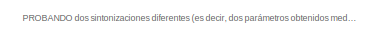
[diagram: root canvas - part 1/6, top left region]
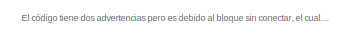
[diagram: root canvas - part 2/6, top right region]
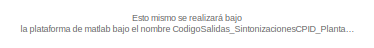
[diagram: root canvas - part 3/6, top left region]
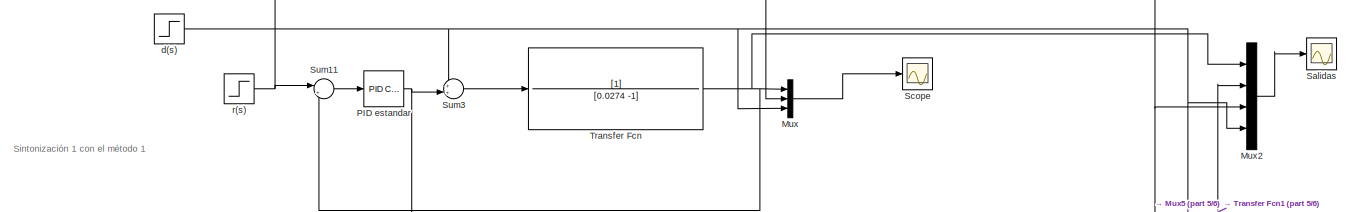
[diagram: root canvas - part 4/6, central region]
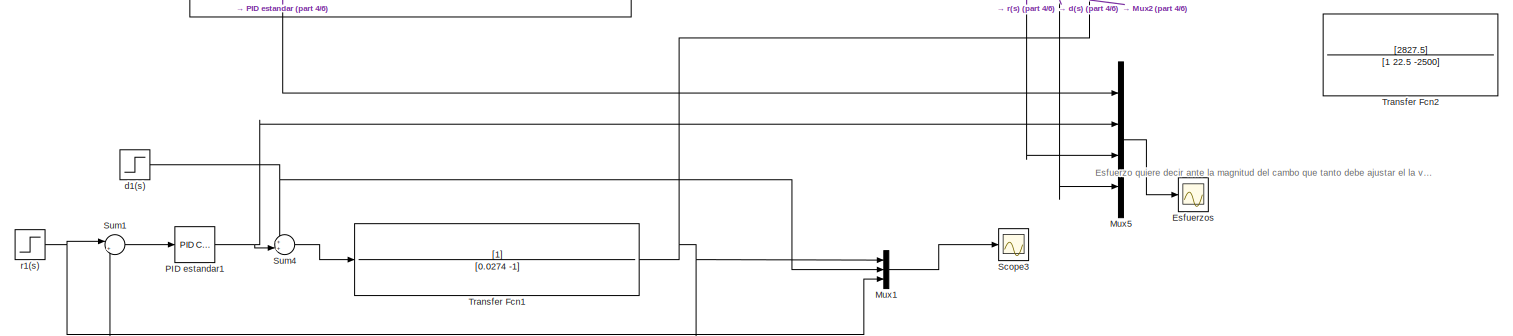
[diagram: root canvas - part 5/6, full width, bottom band]
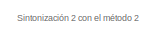
[diagram: root canvas - part 6/6, middle left region]
MODEL slx_3dabc0c36dd0
KIND model
CONFIG AbsTol = auto
CONFIG EnableMultiTasking = off
CONFIG FixedStep = auto
CONFIG MaxStep = auto
CONFIG MinStep = auto
CONFIG RelTol = 1e-3
CONFIG SampleTimeConstraint = Unconstrained
CONFIG Solver = VariableStepAuto
CONFIG SolverName = VariableStepAuto
CONFIG StartTime = 0.0
CONFIG StopTime = 100
BLOCK [Scope] Esfuerzos
  Floating = off
  NumInputPorts = 1
  Ports = [1]
  ScopeSpecificationString = Simulink.scopes.TimeScopeBlockCfg('CurrentConfiguration', extmgr.ConfigurationSet(extmgr.Configuration('Core','General UI',true,'FigureColor',[1 1 1]),extmgr.Configuration('Core','Source UI',true),extmgr.Configuration('Sources','WiredSimulink',true,'DataLoggingVariableName','ScopeData5'),extmgr.Configuration('Visuals','Time Domain',true,'SerializedDisplays',{struct('MinYLimReal','-5.75527','MaxYLi...<+1985ch>
BLOCK [Mux] Mux
  DisplayOption = bar
  Inputs = 3
  Ports = [3, 1]
BLOCK [Mux] Mux1
  DisplayOption = bar
  Inputs = 3
  Ports = [3, 1]
BLOCK [Mux] Mux2
  DisplayOption = bar
  Ports = [4, 1]
BLOCK [Mux] Mux5
  DisplayOption = bar
  Ports = [4, 1]
BLOCK [Reference] PID estandar  REF=simulink/Continuous/PID Controller
  Ports = [1, 1]
  SourceBlock = simulink/Continuous/PID Controller
  SourceProductBaseCode = SL
  SourceProductName = Simulink
  SourceType = PID 1dof
BLOCK [Reference] PID estandar1  REF=simulink/Continuous/PID Controller
  Ports = [1, 1]
  SourceBlock = simulink/Continuous/PID Controller
  SourceProductBaseCode = SL
  SourceProductName = Simulink
  SourceType = PID 1dof
BLOCK [Scope] Salidas
  Floating = off
  NumInputPorts = 1
  Ports = [1]
  ScopeSpecificationString = Simulink.scopes.TimeScopeBlockCfg('CurrentConfiguration', extmgr.ConfigurationSet(extmgr.Configuration('Core','General UI',true,'FigureColor',[1 1 1]),extmgr.Configuration('Core','Source UI',true),extmgr.Configuration('Sources','WiredSimulink',true,'DataLoggingVariableName','ScopeData4'),extmgr.Configuration('Visuals','Time Domain',true,'SerializedDisplays',{struct('MinYLimReal','-0.30677','MaxYLi...<+1851ch>
BLOCK [Scope] Scope
  Floating = off
  NumInputPorts = 1
  Ports = [1]
  ScopeSpecificationString = Simulink.scopes.TimeScopeBlockCfg('CurrentConfiguration', extmgr.ConfigurationSet(extmgr.Configuration('Core','General UI',true,'FigureColor',[1 1 1]),extmgr.Configuration('Core','Source UI',true),extmgr.Configuration('Sources','WiredSimulink',true,'DataLoggingVariableName','ScopeData2'),extmgr.Configuration('Visuals','Time Domain',true,'SerializedDisplays',{struct('MinYLimReal','-12.87704','MaxYL...<+1800ch>
BLOCK [Scope] Scope3
  Floating = off
  NumInputPorts = 1
  Ports = [1]
  ScopeSpecificationString = Simulink.scopes.TimeScopeBlockCfg('CurrentConfiguration', extmgr.ConfigurationSet(extmgr.Configuration('Core','General UI',true,'FigureColor',[1 1 1]),extmgr.Configuration('Core','Source UI',true),extmgr.Configuration('Sources','WiredSimulink',true,'DataLoggingVariableName','ScopeData3'),extmgr.Configuration('Visuals','Time Domain',true,'SerializedDisplays',{struct('MinYLimReal','-0.30093','MaxYLi...<+1733ch>
BLOCK [Sum] Sum1
  IconShape = round
  InputSameDT = off
  Inputs = |+-
  OutDataTypeStr = Inherit: Inherit via internal rule
  Ports = [2, 1]
  SaturateOnIntegerOverflow = off
BLOCK [Sum] Sum11
  IconShape = round
  InputSameDT = off
  Inputs = |+-
  OutDataTypeStr = Inherit: Inherit via internal rule
  Ports = [2, 1]
  SaturateOnIntegerOverflow = off
BLOCK [Sum] Sum3
  IconShape = round
  InputSameDT = off
  Inputs = ++|
  OutDataTypeStr = Inherit: Inherit via internal rule
  Ports = [2, 1]
  SaturateOnIntegerOverflow = off
BLOCK [Sum] Sum4
  IconShape = round
  InputSameDT = off
  Inputs = ++|
  OutDataTypeStr = Inherit: Inherit via internal rule
  Ports = [2, 1]
  SaturateOnIntegerOverflow = off
BLOCK [TransferFcn] Transfer Fcn
  Denominator = [0.0274 -1]
BLOCK [TransferFcn] Transfer Fcn1
  Denominator = [0.0274 -1]
BLOCK [TransferFcn] Transfer Fcn2
  Denominator = [1 22.5 -2500]
  Numerator = [2827.5]
BLOCK [Step] d(s)
  SampleTime = 0
  Time = 50
BLOCK [Step] d1(s)
  SampleTime = 0
  Time = 50
BLOCK [Step] r(s)
  SampleTime = 0
BLOCK [Step] r1(s)
  SampleTime = 0
ANNOTATION (root): Esto mismo se realizará bajo la plataforma de matlab bajo el nombre CodigoSalidas_SintonizacionesCPID_PlantaInestable.m con el fin de ver la simulitud entre los resultados.
ANNOTATION (root): El código tiene dos advertencias pero es debido al bloque sin conectar, el cual solo se tiene de muestra de el como escribir la funcion de transferencia
ANNOTATION (root): Sintonización 1 con el método 1
ANNOTATION (root): Sintonización 2 con el método 2
ANNOTATION (root): Esfuerzo quiere decir ante la magnitud del cambo que tanto debe ajustar el la variable controlada
ANNOTATION (root): PROBANDO dos sintonizaciones diferentes (es decir, dos parámetros obtenidos mediantes métodos de sintonizar un controlador). Cuando se habla de sintonización es cuando se busca que el controlador logre equiparar el cambio sucedido en la entrada siendo este en el valor deseado o o por perturbaciones
LINE Mux1:1 -> Scope3:1
LINE Mux2:1 -> Salidas:1
LINE Mux5:1 -> Esfuerzos:1
LINE Mux:1 -> Scope:1
NET PID estandar1:1 -> Mux5:2, Sum4:2
NET PID estandar:1 -> Mux5:1, Sum3:2
LINE Sum11:1 -> PID estandar:1
LINE Sum1:1 -> PID estandar1:1
LINE Sum3:1 -> Transfer Fcn:1
LINE Sum4:1 -> Transfer Fcn1:1
NET Transfer Fcn1:1 -> Mux1:1, Mux2:2, Sum1:2
NET Transfer Fcn:1 -> Mux2:1, Mux:1, Sum11:2
NET d(s):1 -> Mux2:4, Mux5:4, Mux:3, Sum3:1
NET d1(s):1 -> Mux1:2, Sum4:1
NET r(s):1 -> Mux2:3, Mux5:3, Mux:2, Sum11:1
NET r1(s):1 -> Mux1:3, Sum1:1
note: NET lines group one-source signal fan-out (src -> all destinations, sorted); 1:1 wires keep LINE
